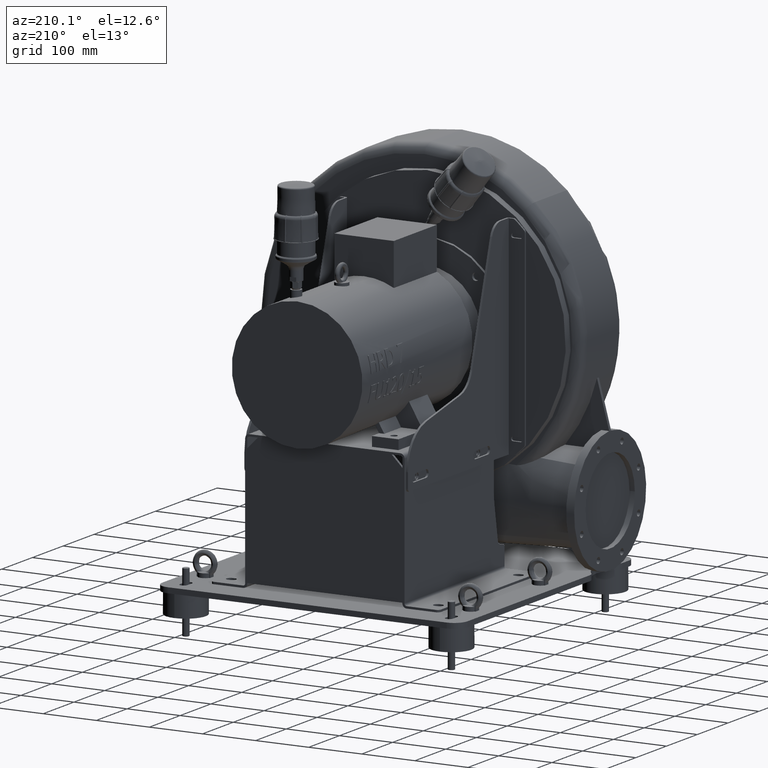
[diagram: clean part render]
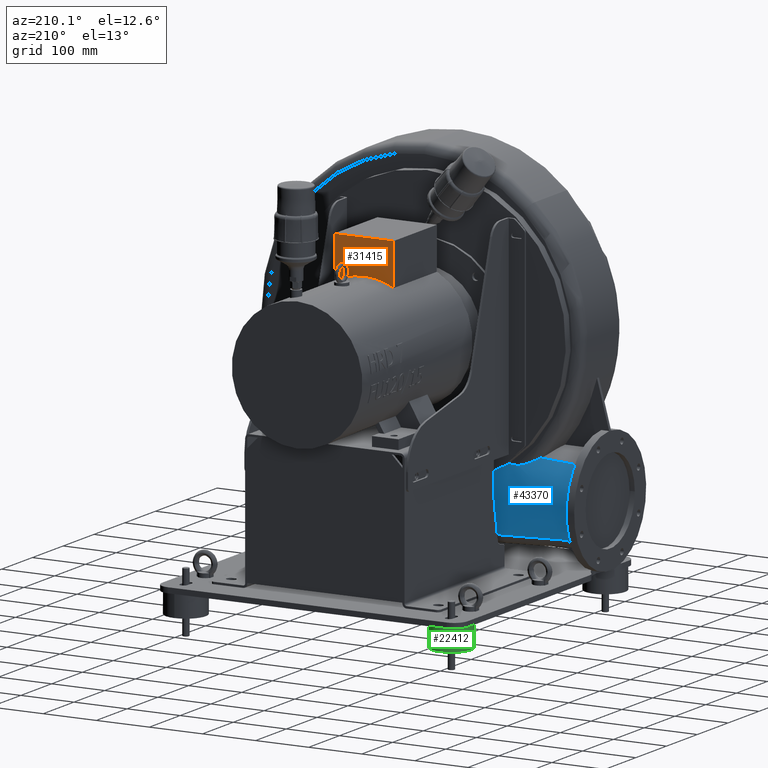
[diagram: same view with three faces highlighted in distinct colors, each labeled with its STEP entity id]
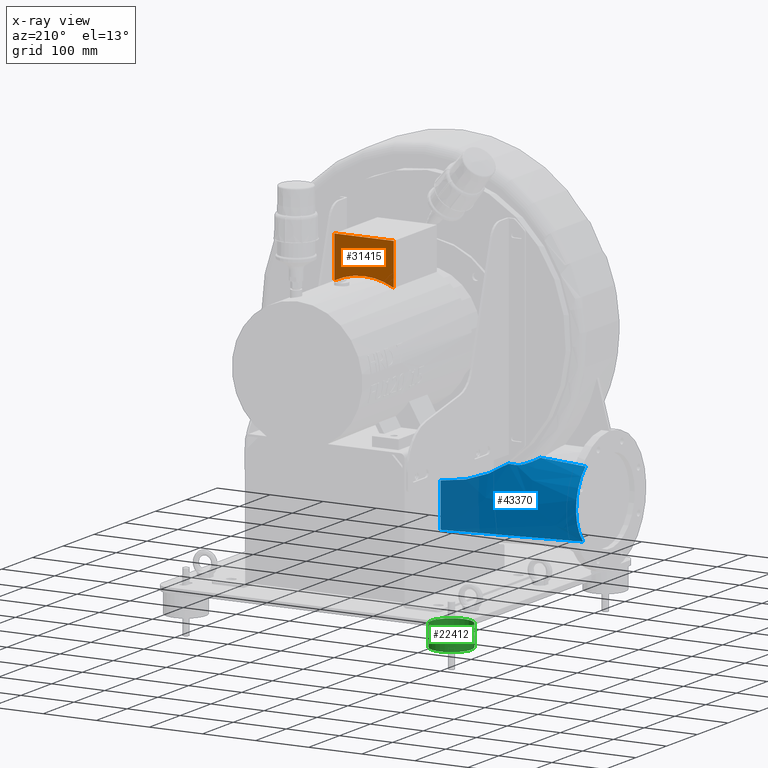
[diagram: x-ray of the same camera — body ghosted, the three highlighted faces saturated]
A machine part, auxiliary view with three faces highlighted in distinct colors.
The next image is the same camera in x-ray (body ghosted, the three faces saturated) — at least one of them is partly hidden behind the body in this view.
Their STEP definitions:

[orange] entity #31415 — the highlighted planar face has unit normal (0, 1, 0).
#31273=CARTESIAN_POINT('',(56.000000000011212,102.499999999995,588.00000000002001));
#31274=VERTEX_POINT('',#31273);
#31281=CARTESIAN_POINT('',(-55.999999999988795,102.49999999999503,588.00000000002206));
#31282=VERTEX_POINT('',#31281);
#31283=CARTESIAN_POINT('',(56.000000000011212,102.499999999995,588.00000000002001));
#31284=DIRECTION('',(-1.0,0.0,0.0));
#31285=VECTOR('',#31284,112.00000000000001);
#31286=LINE('',#31283,#31285);
#31287=EDGE_CURVE('',#31274,#31282,#31286,.T.);
#31333=CARTESIAN_POINT('',(56.000000000009805,102.49999999999548,509.51255635772725));
#31334=VERTEX_POINT('',#31333);
#31341=CARTESIAN_POINT('',(56.000000000011212,102.499999999995,588.00000000002001));
#31342=DIRECTION('',(0.0,0.0,-1.0));
#31343=VECTOR('',#31342,78.487443642292703);
#31344=LINE('',#31341,#31343);
#31345=EDGE_CURVE('',#31274,#31334,#31344,.T.);
#31379=CARTESIAN_POINT('',(-55.999999999990209,102.49999999999552,509.5125563577293));
#31380=VERTEX_POINT('',#31379);
#31389=CARTESIAN_POINT('',(-55.999999999988795,102.49999999999503,588.00000000002206));
#31390=DIRECTION('',(0.0,0.0,-1.0));
#31391=VECTOR('',#31390,78.487443642292703);
#31392=LINE('',#31389,#31391);
#31393=EDGE_CURVE('',#31282,#31380,#31392,.T.);
#31398=CARTESIAN_POINT('',(56.000000000011212,102.499999999995,588.00000000002001));
#31399=DIRECTION('',(0.0,1.0,0.0));
#31400=DIRECTION('',(-1.0,0.0,0.0));
#31401=AXIS2_PLACEMENT_3D('',#31398,#31399,#31400);
#31402=PLANE('',#31401);
#31403=CARTESIAN_POINT('',(7.811363E-012,102.49999999999616,400.00000000002098));
#31404=DIRECTION('',(0.0,1.0,0.0));
#31405=DIRECTION('',(0.0,0.0,1.0));
#31406=AXIS2_PLACEMENT_3D('',#31403,#31404,#31405);
#31407=CIRCLE('',#31406,123.00000000000009);
#31408=EDGE_CURVE('',#31380,#31334,#31407,.T.);
#31409=ORIENTED_EDGE('',*,*,#31408,.F.);
#31410=ORIENTED_EDGE('',*,*,#31393,.F.);
#31411=ORIENTED_EDGE('',*,*,#31287,.F.);
#31412=ORIENTED_EDGE('',*,*,#31345,.T.);
#31413=EDGE_LOOP('',(#31409,#31410,#31411,#31412));
#31414=FACE_OUTER_BOUND('',#31413,.T.);
#31415=ADVANCED_FACE('',(#31414),#31402,.T.);

[blue] entity #43370 — the highlighted face is a freeform B-spline surface patch.
#42539=CARTESIAN_POINT('',(-197.29281062156531,-129.96427709897497,196.82991845160581));
#42540=VERTEX_POINT('',#42539);
#42551=CARTESIAN_POINT('',(-279.99999999999096,-134.25826848396505,190.85458445439633));
#42552=VERTEX_POINT('',#42551);
#42553=CARTESIAN_POINT('',(-197.29281062156528,-129.96427709897497,196.82991845160575));
#42554=CARTESIAN_POINT('',(-224.86187374770719,-131.39560756063833,194.83814045253595));
#42555=CARTESIAN_POINT('',(-252.43093687384908,-132.82693802230168,192.84636245346616));
#42556=CARTESIAN_POINT('',(-279.99999999999096,-134.25826848396503,190.85458445439633));
#42557=B_SPLINE_CURVE_WITH_KNOTS('',3,(#42553,#42554,#42555,#42556),.UNSPECIFIED.,.F.,.U.,(4,4),(0.687897398571979,1.0),.UNSPECIFIED.);
#42558=EDGE_CURVE('',#42540,#42552,#42557,.T.);
#42856=CARTESIAN_POINT('',(-279.99999999999073,-125.83262753470862,67.032614335645803));
#42857=VERTEX_POINT('',#42856);
#42858=CARTESIAN_POINT('',(-279.99999999999181,-187.99999999999673,125.00000000001862));
#42859=DIRECTION('',(-1.0,0.0,0.0));
#42860=DIRECTION('',(0.0,1.0,0.0));
#42861=AXIS2_PLACEMENT_3D('',#42858,#42859,#42860);
#42862=CIRCLE('',#42861,85.0);
#42863=EDGE_CURVE('',#42552,#42857,#42862,.T.);
#42952=CARTESIAN_POINT('',(-142.78385606985606,-120.49999999999955,182.71500179301012));
#42953=VERTEX_POINT('',#42952);
#42954=CARTESIAN_POINT('',(-14.999999999990683,-120.50000000000128,140.43305295167116));
#42955=VERTEX_POINT('',#42954);
#42956=CARTESIAN_POINT('',(-142.78385606985609,-120.49999999999926,182.71500179301012));
#42957=CARTESIAN_POINT('',(-135.63344954905099,-118.95092176476524,178.0162760460307));
#42958=CARTESIAN_POINT('',(-127.82312566755274,-117.95123124159312,173.39032366766247));
#42959=CARTESIAN_POINT('',(-119.36253827627465,-117.37456888932614,169.01821618094272));
#42960=CARTESIAN_POINT('',(-104.96161796375972,-116.3930213680766,161.5763721809731));
#42961=CARTESIAN_POINT('',(-88.798836964966654,-116.62630168772262,154.93318778691562));
#42962=CARTESIAN_POINT('',(-70.98276980108102,-117.36129101772519,149.8771374077217));
#42963=CARTESIAN_POINT('',(-63.504063494678043,-117.66981979048214,147.75474330645687));
#42964=CARTESIAN_POINT('',(-55.678389705745033,-118.07260817506034,145.90633517420235));
#42965=CARTESIAN_POINT('',(-47.835029463694156,-118.51332140958402,144.43824629613155));
#42966=CARTESIAN_POINT('',(-36.993629649946264,-119.12249250860674,142.40899633207275));
#42967=CARTESIAN_POINT('',(-26.025580335143488,-119.80513600780282,141.07020535843154));
#42968=CARTESIAN_POINT('',(-14.999999999990678,-120.50000000000128,140.43305295167119));
#42969=B_SPLINE_CURVE_WITH_KNOTS('',3,(#42956,#42957,#42958,#42959,#42960,#42961,#42962,#42963,#42964,#42965,#42966,#42967,#42968),.UNSPECIFIED.,.F.,.U.,(4,3,3,3,4),(-14.804292424850814,-11.442916999404311,-5.721458499702155,-3.3197439478912,0.0),.UNSPECIFIED.);
#42970=EDGE_CURVE('',#42953,#42955,#42969,.T.);
#43117=CARTESIAN_POINT('',(-157.5887990638798,-120.49999999999929,182.06169121130603));
#43118=VERTEX_POINT('',#43117);
#43119=CARTESIAN_POINT('',(-142.78385606985606,-120.49999999999955,182.71500179301012));
#43120=CARTESIAN_POINT('',(-147.718837067864,-120.49999999999947,182.49723159910872));
#43121=CARTESIAN_POINT('',(-152.65381806587189,-120.49999999999937,182.27946140520737));
#43122=CARTESIAN_POINT('',(-157.5887990638798,-120.49999999999929,182.06169121130603));
#43123=B_SPLINE_CURVE_WITH_KNOTS('',3,(#43119,#43120,#43121,#43122),.UNSPECIFIED.,.F.,.U.,(4,4),(12.753307901752059,14.235242960290249),.UNSPECIFIED.);
#43124=EDGE_CURVE('',#42953,#43118,#43123,.T.);
#43153=CARTESIAN_POINT('',(-14.99999999999063,-120.50000000000057,58.000000000019298));
#43154=VERTEX_POINT('',#43153);
#43162=CARTESIAN_POINT('',(-14.999999999990635,-120.50000000000065,67.02737881475511));
#43163=VERTEX_POINT('',#43162);
#43164=CARTESIAN_POINT('',(-14.999999999990633,-120.50000000000065,67.02737881475511));
#43165=DIRECTION('',(0.0,0.0,-1.0));
#43166=VECTOR('',#43165,9.027378814735776);
#43167=LINE('',#43164,#43166);
#43168=EDGE_CURVE('',#43163,#43154,#43167,.T.);
#43170=CARTESIAN_POINT('',(-14.999999999990672,-120.50000000000114,123.62344527802414));
#43171=VERTEX_POINT('',#43170);
#43172=CARTESIAN_POINT('',(-14.999999999990672,-120.50000000000115,123.62344527802414));
#43173=DIRECTION('',(0.0,0.0,-1.0));
#43174=VECTOR('',#43173,56.596066463269025);
#43175=LINE('',#43172,#43174);
#43176=EDGE_CURVE('',#43171,#43163,#43175,.T.);
#43178=CARTESIAN_POINT('',(-14.999999999990672,-120.50000000000117,123.62344527802415));
#43179=DIRECTION('',(0.0,0.0,1.0));
#43180=VECTOR('',#43179,16.809607673647008);
#43181=LINE('',#43178,#43180);
#43182=EDGE_CURVE('',#43171,#42955,#43181,.T.);
#43308=CARTESIAN_POINT('',(-14.999999999990731,-120.50000000000189,210.00000000001936));
#43309=CARTESIAN_POINT('',(-14.999999999990727,-120.50000000000182,202.76190476192411));
#43310=CARTESIAN_POINT('',(-14.99999999999072,-120.50000000000171,188.28571428573366));
#43311=CARTESIAN_POINT('',(-14.99999999999069,-120.50000000000138,159.33333333335261));
#43312=CARTESIAN_POINT('',(-14.999999999990674,-120.50000000000114,123.14285714287651));
#43313=CARTESIAN_POINT('',(-14.999999999990647,-120.5000000000008,86.952380952400276));
#43314=CARTESIAN_POINT('',(-14.999999999990635,-120.50000000000065,65.238095238114568));
#43315=CARTESIAN_POINT('',(-14.99999999999063,-120.50000000000057,58.000000000019334));
#43316=CARTESIAN_POINT('',(-103.33333333332412,-125.08608949465626,203.61819481814504));
#43317=CARTESIAN_POINT('',(-103.33333333332406,-123.37243923805359,197.39794865949062));
#43318=CARTESIAN_POINT('',(-103.33333333332413,-120.28550003873214,184.54958971700813));
#43319=CARTESIAN_POINT('',(-103.33333333332376,-115.73382723782247,157.60461275794592));
#43320=CARTESIAN_POINT('',(-103.33333333332403,-113.6485408632191,122.3236935354183));
#43321=CARTESIAN_POINT('',(-103.33333333332391,-116.81400478332327,87.298748900579199));
#43322=CARTESIAN_POINT('',(-103.33333333332399,-120.7741851276725,67.453138888473845));
#43323=CARTESIAN_POINT('',(-103.33333333332398,-122.27754251156993,61.010871445228155));
#43324=CARTESIAN_POINT('',(-191.66666666665753,-129.67217898931065,197.23638963627067));
#43325=CARTESIAN_POINT('',(-191.66666666665753,-126.25297588753941,192.0297900031309));
#43326=CARTESIAN_POINT('',(-191.66666666665733,-120.06856222555882,180.81426195933255));
#43327=CARTESIAN_POINT('',(-191.66666666665719,-110.9726541984833,155.87448162456016));
#43328=CARTESIAN_POINT('',(-191.66666666665702,-106.79097235126802,121.50310619574483));
#43329=CARTESIAN_POINT('',(-191.66666666665716,-113.13355330203784,87.64843678284997));
#43330=CARTESIAN_POINT('',(-191.66666666665731,-121.040334933598,69.663034508094412));
#43331=CARTESIAN_POINT('',(-191.66666666665736,-124.05508502313927,64.021742890436983));
#43332=CARTESIAN_POINT('',(-279.99999999999096,-134.25826848396503,190.85458445439633));
#43333=CARTESIAN_POINT('',(-279.99999999999085,-129.12541512559119,186.66583390069741));
#43334=CARTESIAN_POINT('',(-279.99999999999073,-119.85406226428924,177.078137390607));
#43335=CARTESIAN_POINT('',(-279.99999999999028,-106.2064814363044,154.14576104915346));
#43336=CARTESIAN_POINT('',(-279.99999999999039,-99.93951321448597,120.68394258828663));
#43337=CARTESIAN_POINT('',(-279.99999999999039,-109.44755808536031,87.994804731028893));
#43338=CARTESIAN_POINT('',(-279.99999999999068,-121.31452006126985,71.87807815845369));
#43339=CARTESIAN_POINT('',(-279.99999999999073,-125.83262753470862,67.032614335645803));
#43340=B_SPLINE_SURFACE_WITH_KNOTS('',3,3,((#43308,#43316,#43324,#43332),(#43309,#43317,#43325,#43333),(#43310,#43318,#43326,#43334),(#43311,#43319,#43327,#43335),(#43312,#43320,#43328,#43336),(#43313,#43321,#43329,#43337),(#43314,#43322,#43330,#43338),(#43315,#43323,#43331,#43339)),.UNSPECIFIED.,.F.,.F.,.F.,(4,1,1,1,1,4),(4,4),(0.0,0.142857142857143,0.285714285714286,0.571428571428571,0.857142857142857,1.0),(0.0,1.0),.UNSPECIFIED.);
#43341=ORIENTED_EDGE('',*,*,#42970,.T.);
#43342=ORIENTED_EDGE('',*,*,#43182,.F.);
#43343=ORIENTED_EDGE('',*,*,#43176,.T.);
#43344=ORIENTED_EDGE('',*,*,#43168,.T.);
#43345=CARTESIAN_POINT('',(-14.99999999999063,-120.50000000000055,58.000000000019313));
#43346=CARTESIAN_POINT('',(-103.33333333332398,-122.27754251156992,61.010871445228148));
#43347=CARTESIAN_POINT('',(-191.66666666665736,-124.05508502313927,64.021742890436968));
#43348=CARTESIAN_POINT('',(-279.99999999999073,-125.83262753470862,67.032614335645803));
#43349=QUASI_UNIFORM_CURVE('',3,(#43345,#43346,#43347,#43348),.UNSPECIFIED.,.F.,.U.);
#43350=EDGE_CURVE('',#43154,#42857,#43349,.T.);
#43351=ORIENTED_EDGE('',*,*,#43350,.T.);
#43352=ORIENTED_EDGE('',*,*,#42863,.F.);
#43353=ORIENTED_EDGE('',*,*,#42558,.F.);
#43354=CARTESIAN_POINT('',(-157.5887990638798,-120.49999999999932,182.06169121130608));
#43355=CARTESIAN_POINT('',(-158.28174014507977,-120.49999999999929,182.03111319820405));
#43356=CARTESIAN_POINT('',(-158.98407246139021,-120.51721935454474,182.04908988672881));
#43357=CARTESIAN_POINT('',(-162.13059697663232,-120.64415703934458,182.26181185175832));
#43358=CARTESIAN_POINT('',(-165.02322275224086,-120.9081040739237,182.85145602538751));
#43359=CARTESIAN_POINT('',(-175.88502956154375,-122.37774021655869,185.8812364699676));
#43360=CARTESIAN_POINT('',(-185.81243549705593,-124.56981083239657,190.09430818466808));
#43361=CARTESIAN_POINT('',(-195.33259880456126,-128.95717496453904,195.62246167162527));
#43362=CARTESIAN_POINT('',(-196.3245825480829,-129.44754064503178,196.22075816449131));
#43363=CARTESIAN_POINT('',(-197.29281062156534,-129.96427709897497,196.82991845160572));
#43364=B_SPLINE_CURVE_WITH_KNOTS('',3,(#43354,#43355,#43356,#43357,#43358,#43359,#43360,#43361,#43362,#43363),.UNSPECIFIED.,.F.,.U.,(4,2,2,2,4),(2.872819435940258,3.132940653965591,4.083313771136317,6.532725547245983,6.822904306382004),.UNSPECIFIED.);
#43365=EDGE_CURVE('',#43118,#42540,#43364,.T.);
#43366=ORIENTED_EDGE('',*,*,#43365,.F.);
#43367=ORIENTED_EDGE('',*,*,#43124,.F.);
#43368=EDGE_LOOP('',(#43341,#43342,#43343,#43344,#43351,#43352,#43353,#43366,#43367));
#43369=FACE_OUTER_BOUND('',#43368,.T.);
#43370=ADVANCED_FACE('',(#43369),#43340,.T.);

[green] entity #22412 — the highlighted cylindrical surface (bore or boss wall) has radius 37.5 mm, axis along (0, -0, 1).
#20668=CARTESIAN_POINT('',(-250.00000000000455,287.50000000000347,1.669775E-012));
#20669=VERTEX_POINT('',#20668);
#21177=CARTESIAN_POINT('',(-287.49999999999653,250.00000000000713,1.416645E-012));
#21178=VERTEX_POINT('',#21177);
#22293=CARTESIAN_POINT('',(-250.00000000000509,250.00000000000659,2.424727E-012));
#22294=DIRECTION('',(-1.556060E-015,-4.537529E-015,1.0));
#22295=DIRECTION('',(0.324386953835805,0.945924470653512,4.796926E-015));
#22296=AXIS2_PLACEMENT_3D('',#22293,#22294,#22295);
#22297=CIRCLE('',#22296,37.5);
#22298=EDGE_CURVE('',#21178,#20669,#22297,.T.);
#22379=CARTESIAN_POINT('',(-250.00000000000509,250.00000000000659,2.424727E-012));
#22380=DIRECTION('',(-1.556060E-015,-4.537529E-015,1.0));
#22381=DIRECTION('',(0.324386953835805,0.945924470653512,4.796926E-015));
#22382=AXIS2_PLACEMENT_3D('',#22379,#22380,#22381);
#22383=CIRCLE('',#22382,37.5);
#22384=EDGE_CURVE('',#20669,#21178,#22383,.T.);
#22392=CARTESIAN_POINT('',(-250.00000000000514,250.00000000000676,-19.99999999999892));
#22393=DIRECTION('',(3.423001E-015,-6.245005E-015,1.0));
#22394=DIRECTION('',(0.324386953835805,0.945924470653512,4.796926E-015));
#22395=AXIS2_PLACEMENT_3D('',#22392,#22393,#22394);
#22396=CYLINDRICAL_SURFACE('',#22395,37.5);
#22397=CARTESIAN_POINT('',(-262.16451076884789,214.52783235050018,-39.999999999999105));
#22398=VERTEX_POINT('',#22397);
#22399=CARTESIAN_POINT('',(-250.00000000000523,250.00000000000688,-39.999999999998927));
#22400=DIRECTION('',(-1.556060E-015,-4.537529E-015,1.0));
#22401=DIRECTION('',(0.324386953835805,0.945924470653512,4.796926E-015));
#22402=AXIS2_PLACEMENT_3D('',#22399,#22400,#22401);
#22403=CIRCLE('',#22402,37.5);
#22404=EDGE_CURVE('',#22398,#22398,#22403,.T.);
#22405=ORIENTED_EDGE('',*,*,#22404,.T.);
#22406=EDGE_LOOP('',(#22405));
#22407=FACE_OUTER_BOUND('',#22406,.T.);
#22408=ORIENTED_EDGE('',*,*,#22298,.F.);
#22409=ORIENTED_EDGE('',*,*,#22384,.F.);
#22410=EDGE_LOOP('',(#22408,#22409));
#22411=FACE_BOUND('',#22410,.T.);
#22412=ADVANCED_FACE('',(#22407,#22411),#22396,.T.);